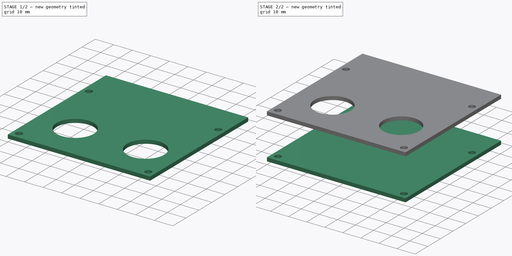
[diagram: build sequence overview — one tinted view per stage of 2, left to right]
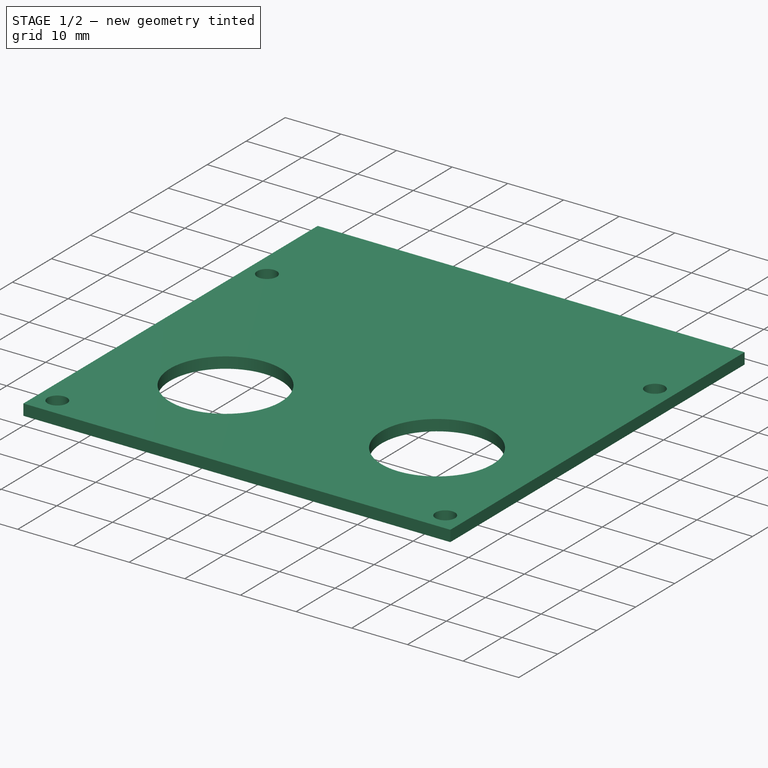
[diagram: stage 1 of 2 — iso view after this stage's code; geometry added in this stage tinted green]
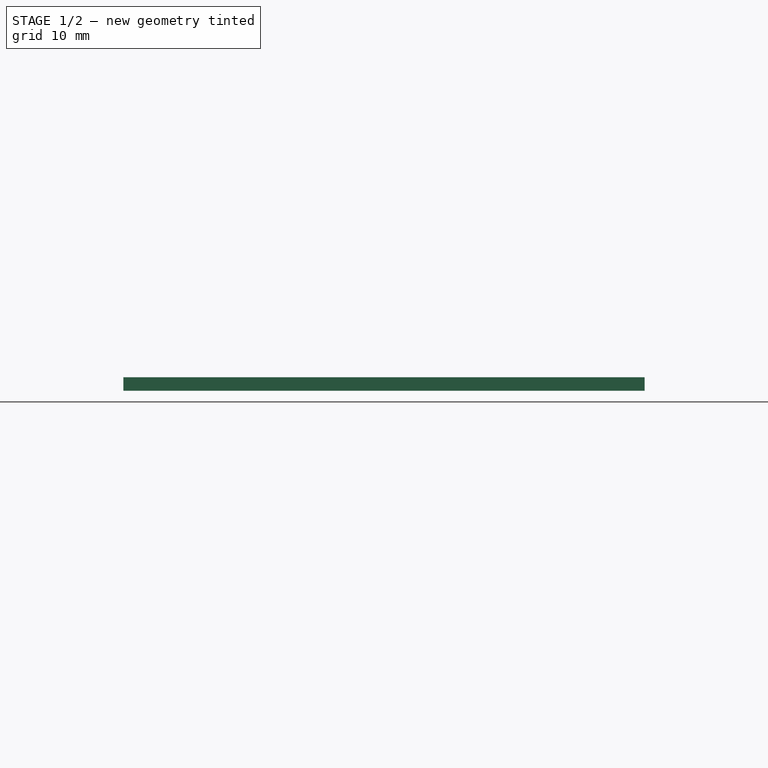
[diagram: stage 1 of 2 — front view after this stage's code; geometry added in this stage tinted green]
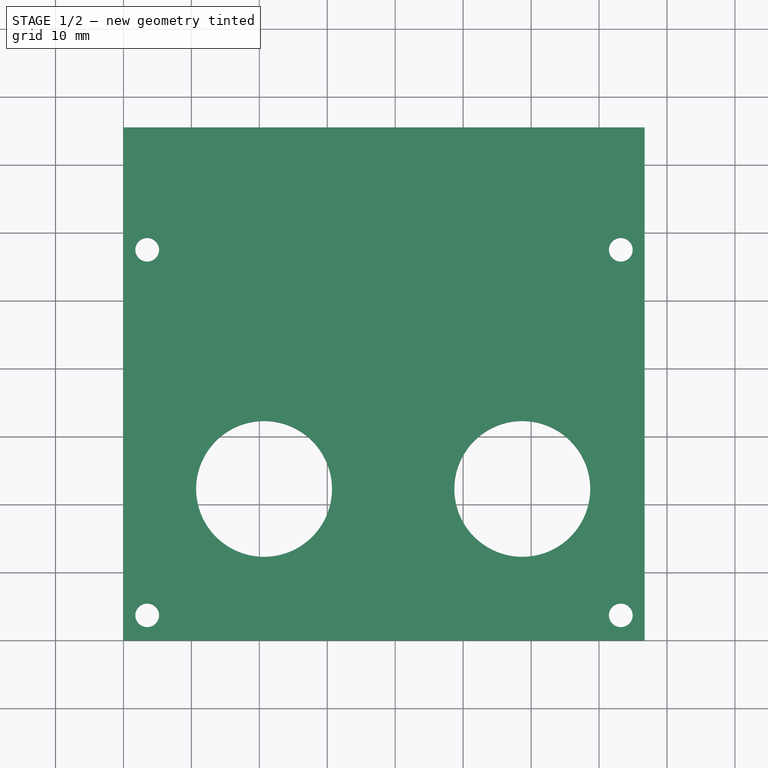
[diagram: stage 1 of 2 — top view after this stage's code; geometry added in this stage tinted green]
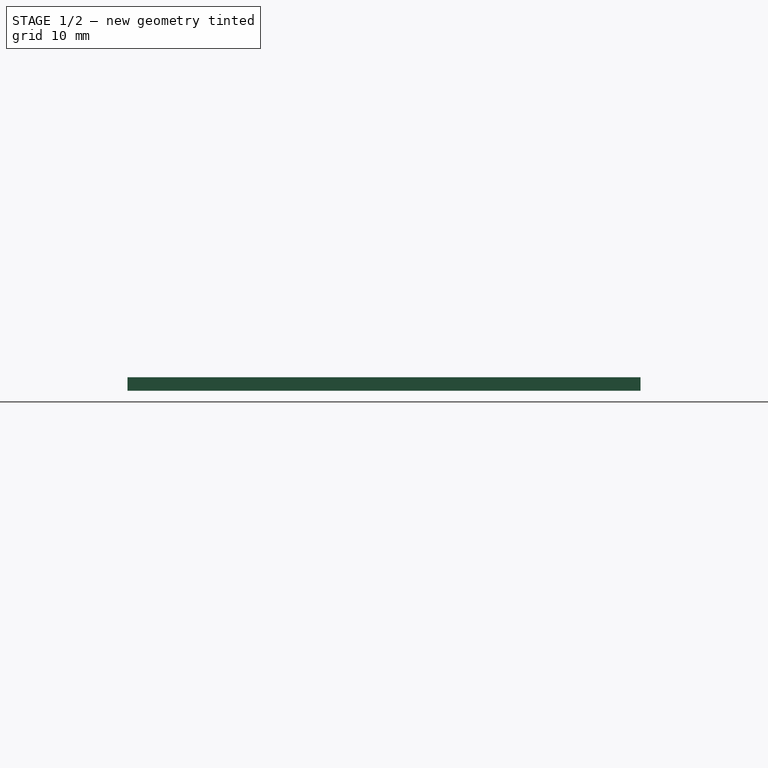
[diagram: stage 1 of 2 — right view after this stage's code; geometry added in this stage tinted green]
FCSTD DOCUMENT  (FreeCAD 0.19R24291 (Git))
Label: simple-plates
License: All rights reserved
LicenseURL: http://en.wikipedia.org/wiki/All_rights_reserved
objects: Sketcher::SketchObject×2, Part::Extrusion×2
note: 4 computed .brp shape members not serialized (recipe doc carries the construction recipe); baked Part::Feature solids carry a one-line shape summary decoded from their .brp

FEATURE [Sketcher::SketchObject] Sketch005
  FullyConstrained = true
  sketch-geometry (10):
    g0: LineSegment StartX=0 StartY=0 StartZ=0 EndX=76.7 EndY=0 EndZ=0
    g1: LineSegment StartX=76.7 StartY=0 StartZ=0 EndX=76.7 EndY=75.5 EndZ=0
    g2: LineSegment StartX=76.7 StartY=75.5 StartZ=0 EndX=0 EndY=75.5 EndZ=0
    g3: LineSegment StartX=0 StartY=75.5 StartZ=0 EndX=0 EndY=0 EndZ=0
    g4: Circle CenterX=58.7 CenterY=22.3 CenterZ=0 NormalX=0 NormalY=0 NormalZ=1 AngleXU=0 Radius=10
    g5: Circle CenterX=20.7 CenterY=22.3 CenterZ=0 NormalX=0 NormalY=0 NormalZ=1 AngleXU=0 Radius=10
    g6: Circle CenterX=3.5 CenterY=3.7 CenterZ=0 NormalX=0 NormalY=0 NormalZ=1 AngleXU=0 Radius=1.75
    g7: Circle CenterX=73.2 CenterY=3.7 CenterZ=0 NormalX=0 NormalY=0 NormalZ=1 AngleXU=0 Radius=1.75
    g8: Circle CenterX=3.5 CenterY=57.5 CenterZ=0 NormalX=0 NormalY=0 NormalZ=1 AngleXU=0 Radius=1.75
    g9: Circle CenterX=73.2 CenterY=57.5 CenterZ=0 NormalX=0 NormalY=0 NormalZ=1 AngleXU=0 Radius=1.75
  constraints (29):
    c: Coincident(g0,g1)
    c: Coincident(g1,g2)
    c: Coincident(g2,g3)
    c: Coincident(g3,g0)
    c: Horizontal(g0)
    c: Horizontal(g2)
    c: Vertical(g1)
    c: Vertical(g3)
    c: Coincident(g0,g-1)
    c: DistanceX(g2,g2) = 76.7
    c: DistanceY(g1,g1) = 75.5
    c: Equal(g5,g4)
    c: DistanceY(g4,g5) = 0
    c: DistanceY(g0,g4) = 22.3
    c: DistanceX(g4,g0) = 18
    c: DistanceX(g5,g4) = 38
    c: DistanceY(g7,g6) = 0
    c: DistanceY(g0,g6) = 3.7
    c: DistanceX(g0,g6) = 3.5
    c: DistanceX(g7,g0) = 3.5
    c: Equal(g6,g7)
    c: Radius(g5) = 10
    c: Equal(g8,g9)
    c: DistanceY(g9,g8) = 0
    c: DistanceX(g9,g7) = 0
    c: DistanceX(g6,g8) = 0
    c: DistanceY(g8,g2) = 18
    c: Equal(g8,g6)
    c: Radius(g8) = 1.75
FEATURE [Part::Extrusion] Extrude005  label="top-plate"
  Base = -> Sketch005
  Dir = (0,0,1)
  DirMode = 2
  FaceMakerClass = Part::FaceMakerBullseye
  LengthFwd = 2
  LengthRev = 0
  Placement = pos=(0,0,22) rot=(0,0,1;0rad)
  Solid = true
  Symmetric = false
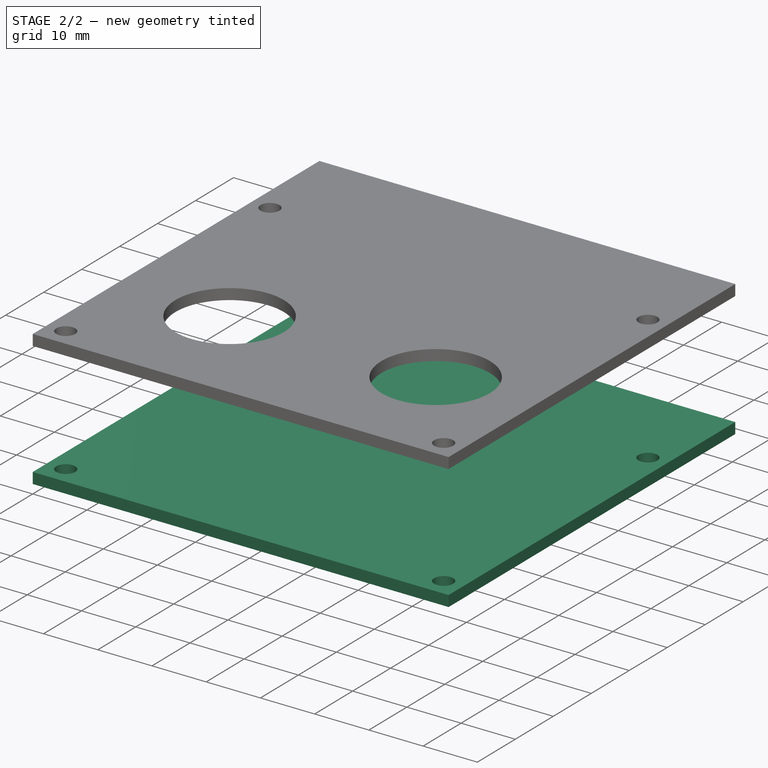
[diagram: stage 2 of 2 — iso view after this stage's code; geometry added in this stage tinted green]
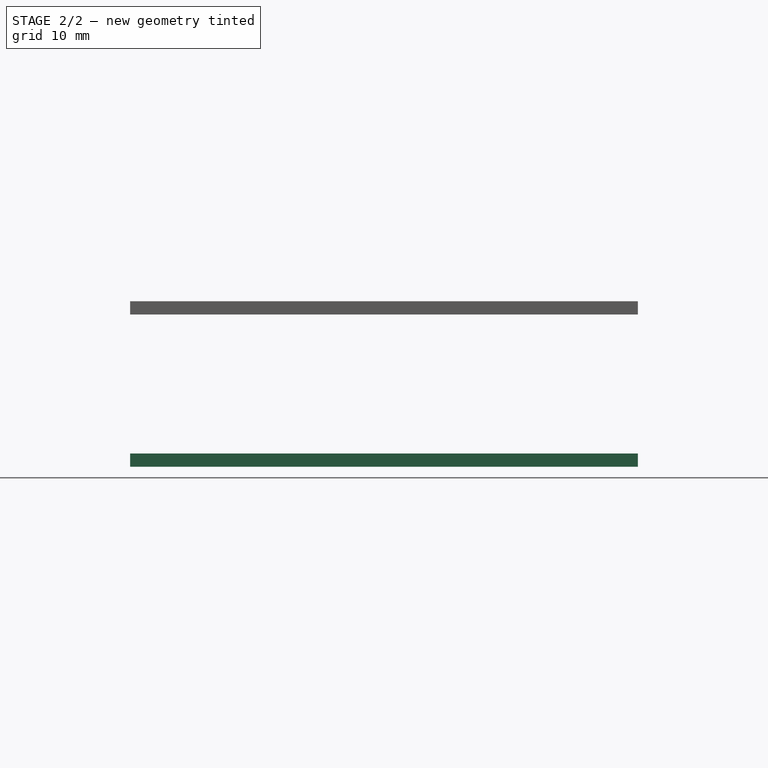
[diagram: stage 2 of 2 — front view after this stage's code; geometry added in this stage tinted green]
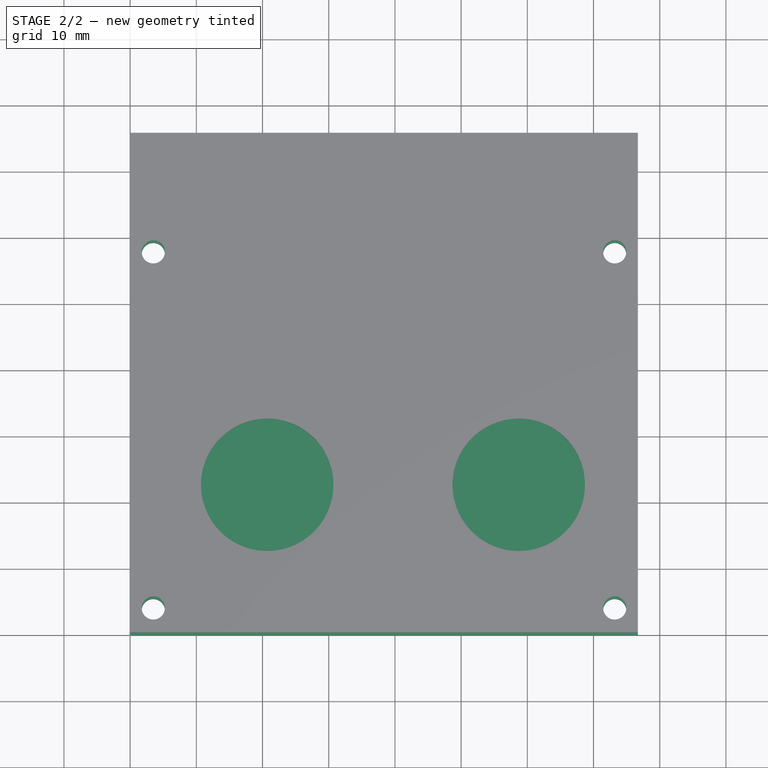
[diagram: stage 2 of 2 — top view after this stage's code; geometry added in this stage tinted green]
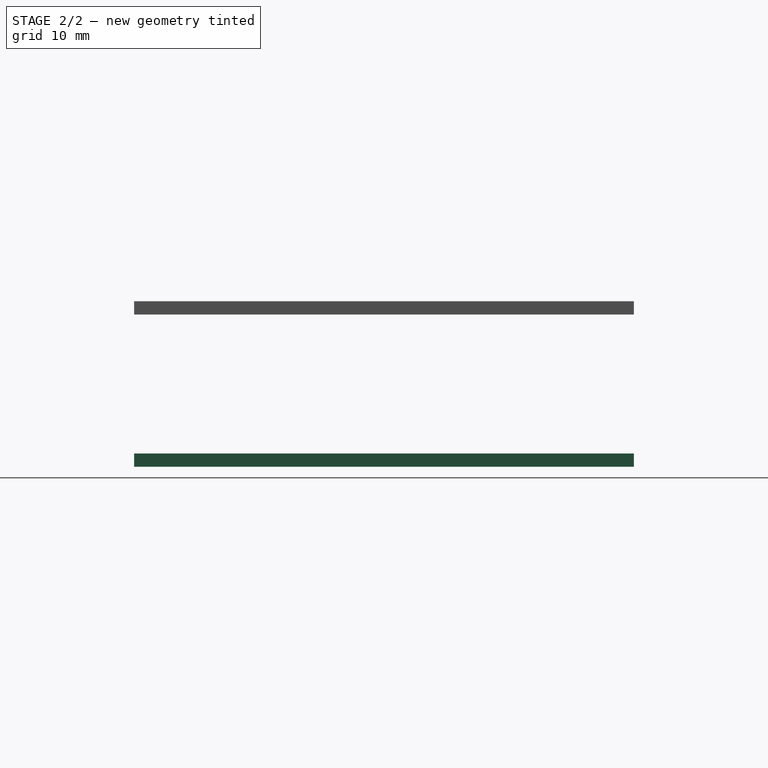
[diagram: stage 2 of 2 — right view after this stage's code; geometry added in this stage tinted green]
FEATURE [Sketcher::SketchObject] Sketch004
  FullyConstrained = true
  sketch-geometry (8):
    g0: LineSegment StartX=0 StartY=0 StartZ=0 EndX=76.7 EndY=0 EndZ=0
    g1: LineSegment StartX=76.7 StartY=0 StartZ=0 EndX=76.7 EndY=75.5 EndZ=0
    g2: LineSegment StartX=76.7 StartY=75.5 StartZ=0 EndX=0 EndY=75.5 EndZ=0
    g3: LineSegment StartX=0 StartY=75.5 StartZ=0 EndX=0 EndY=0 EndZ=0
    g4: Circle CenterX=3.5 CenterY=3.7 CenterZ=0 NormalX=0 NormalY=0 NormalZ=1 AngleXU=0 Radius=1.75
    g5: Circle CenterX=73.2 CenterY=3.7 CenterZ=0 NormalX=0 NormalY=0 NormalZ=1 AngleXU=0 Radius=1.75
    g6: Circle CenterX=3.5 CenterY=57.5 CenterZ=0 NormalX=0 NormalY=0 NormalZ=1 AngleXU=0 Radius=1.75
    g7: Circle CenterX=73.2 CenterY=57.5 CenterZ=0 NormalX=0 NormalY=0 NormalZ=1 AngleXU=0 Radius=1.75
  constraints (23):
    c: Coincident(g0,g1)
    c: Coincident(g1,g2)
    c: Coincident(g2,g3)
    c: Coincident(g3,g0)
    c: Horizontal(g0)
    c: Horizontal(g2)
    c: Vertical(g1)
    c: Vertical(g3)
    c: Coincident(g0,g-1)
    c: DistanceX(g2,g2) = 76.7
    c: DistanceY(g1,g1) = 75.5
    c: DistanceY(g5,g4) = 0
    c: DistanceY(g0,g4) = 3.7
    c: DistanceX(g0,g4) = 3.5
    c: DistanceX(g5,g0) = 3.5
    c: Equal(g4,g5)
    c: Equal(g6,g7)
    c: DistanceY(g7,g6) = 0
    c: DistanceX(g7,g5) = 0
    c: DistanceX(g4,g6) = 0
    c: DistanceY(g6,g2) = 18
    c: Equal(g6,g4)
    c: Radius(g6) = 1.75
FEATURE [Part::Extrusion] Extrude004  label="bottom-plate"
  Base = -> Sketch004
  Dir = (0,0,1)
  DirMode = 2
  FaceMakerClass = Part::FaceMakerBullseye
  LengthFwd = 2
  LengthRev = 0
  Placement = pos=(0,0,-1) rot=(0,0,1;0rad)
  Solid = true
  Symmetric = false
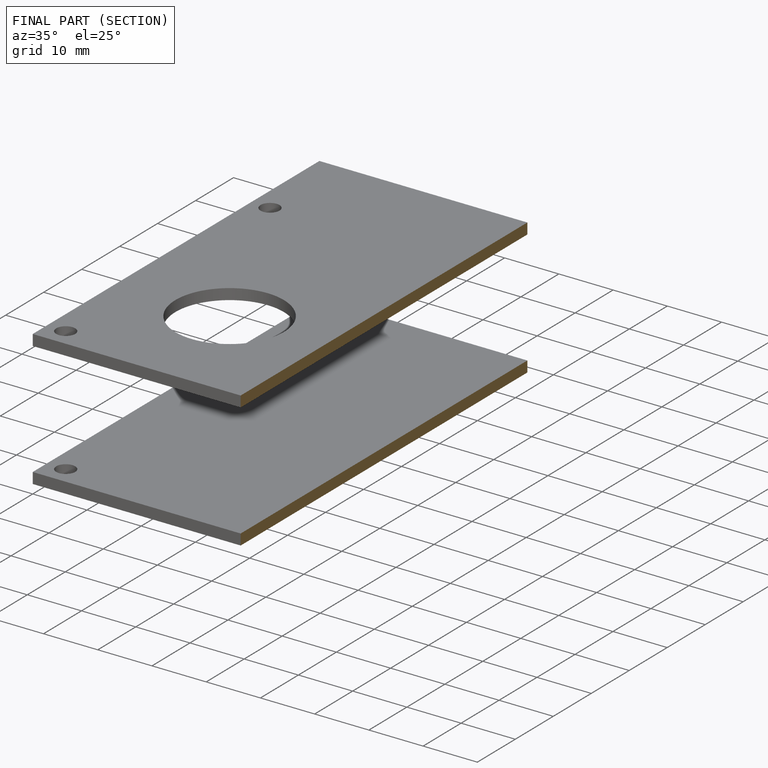
[diagram: finished part — half-section view (interior)]
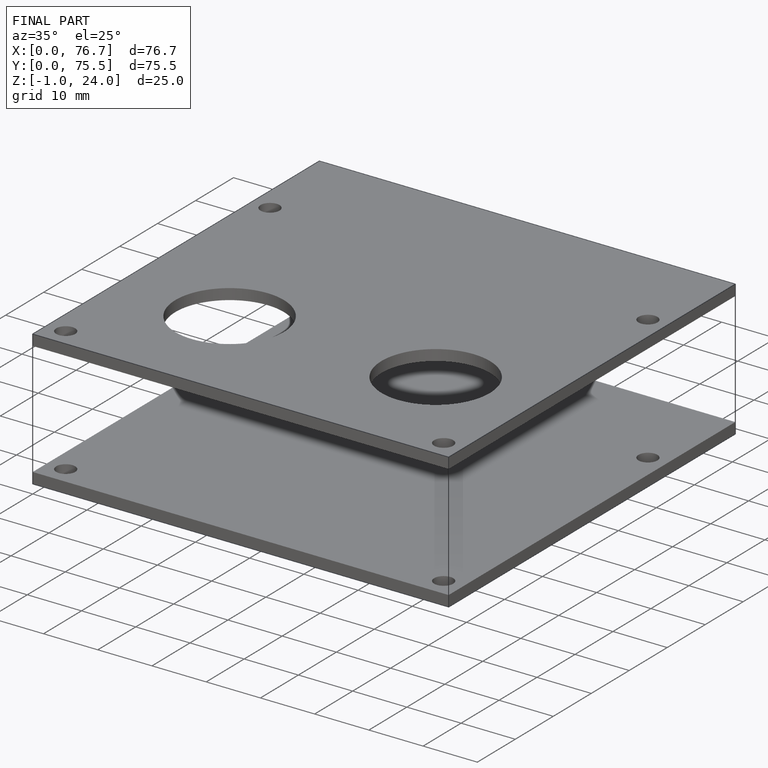
[diagram: finished part — iso view with bounding-box wireframe]
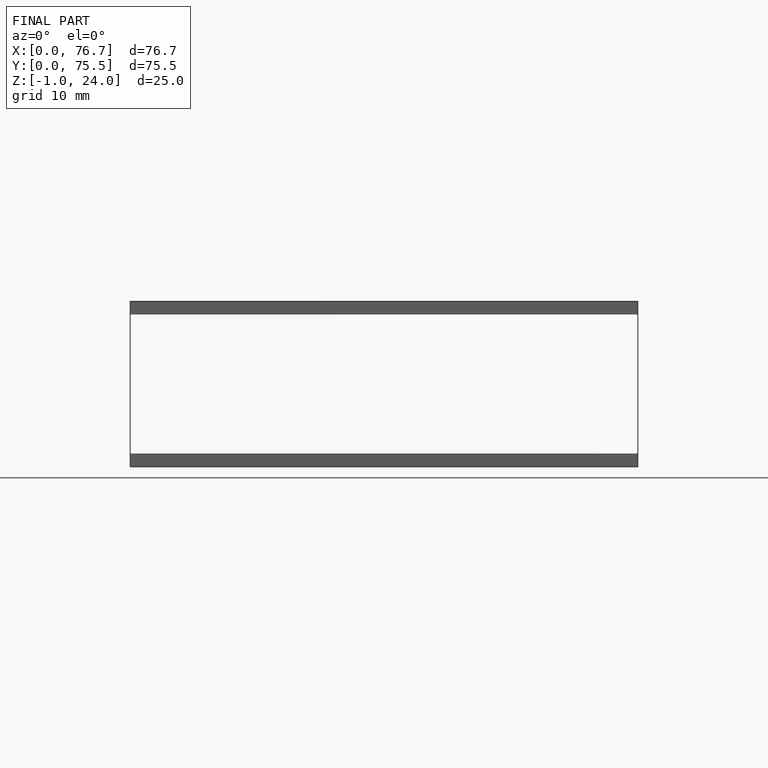
[diagram: finished part — front view with bounding-box wireframe]
